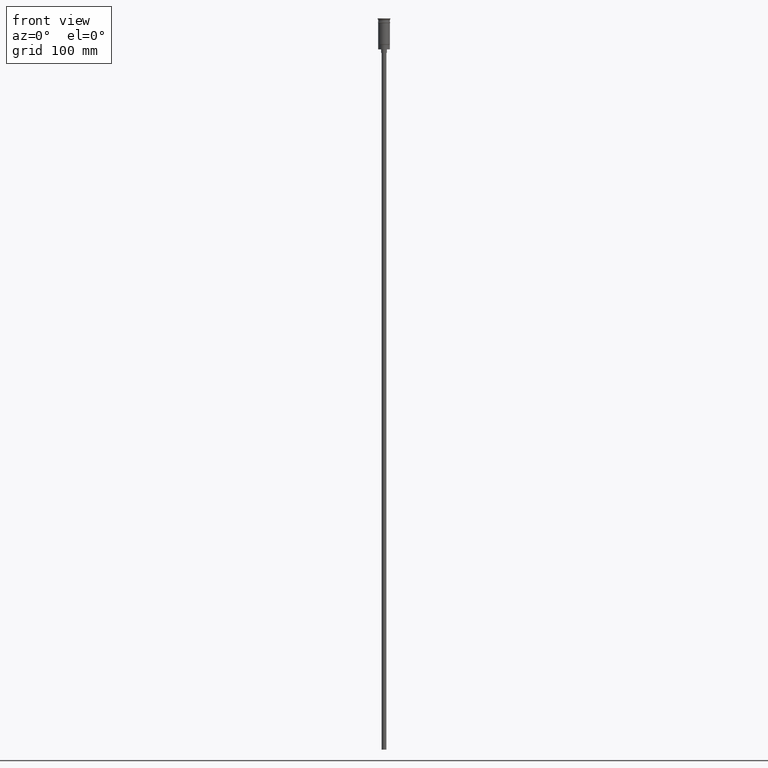
[diagram: clean part render]
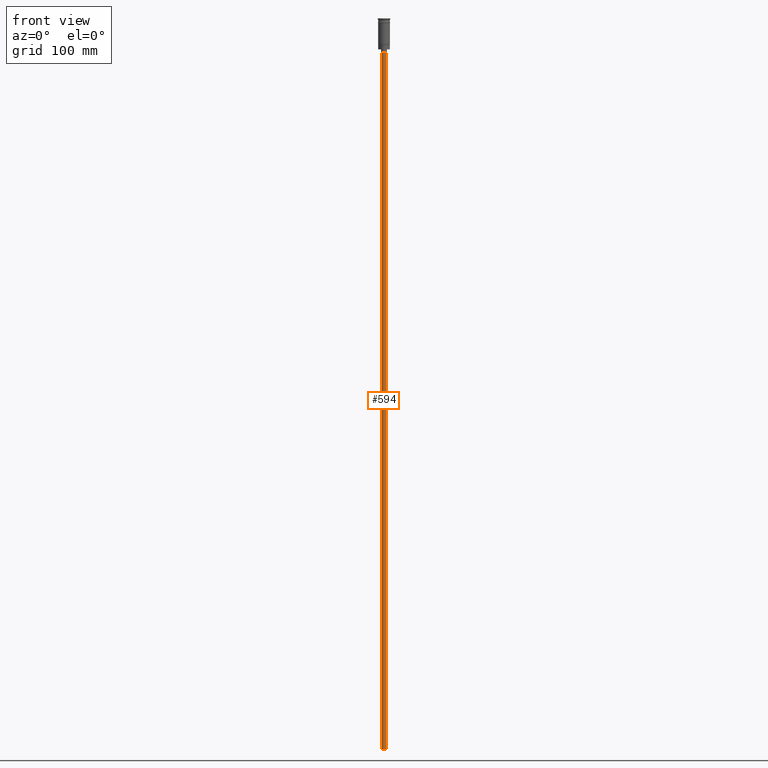
[diagram: same view with one face highlighted and labeled with its STEP entity id]
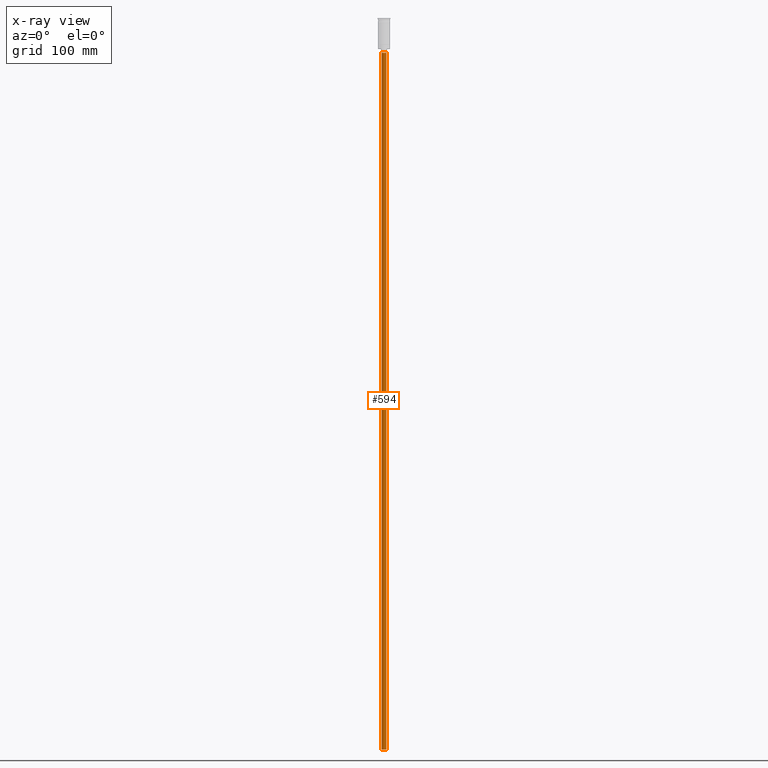
[diagram: x-ray of the same camera — body ghosted, the highlighted face saturated]
A machine part, front view. The second image highlights one B-rep face of the part: STEP entity #594.
The next image is the same camera in x-ray: the body ghosted, the highlighted face saturated — about 0% of this face is hidden behind the body in this view.
In plain terms, the highlighted cylindrical surface (edge-blend (fillet) strip) has radius 2 mm, axis along (-0, -0, 1).
Its self-contained STEP definition (entity closure, byte-faithful):
#24 = CARTESIAN_POINT ( 'NONE',  ( 2.000000000000000000, 0.000000000000000000, -626.5000000000000000 ) ) ;
#40 = CARTESIAN_POINT ( 'NONE',  ( 0.000000000000000000, 0.000000000000000000, -626.5000000000000000 ) ) ;
#81 = FACE_OUTER_BOUND ( 'NONE', #415, .T. ) ;
#136 = CIRCLE ( 'NONE', #1195, 2.000000000000000000 ) ;
#153 = LINE ( 'NONE', #24, #592 ) ;
#157 = VECTOR ( 'NONE', #1250, 1000.000000000000000 ) ;
#229 = ORIENTED_EDGE ( 'NONE', *, *, #1166, .T. ) ;
#239 = CARTESIAN_POINT ( 'NONE',  ( 0.000000000000000000, 0.000000000000000000, -29.50000000000000000 ) ) ;
#280 = CARTESIAN_POINT ( 'NONE',  ( 2.000000000000000000, 0.000000000000000000, -29.50000000000000000 ) ) ;
#391 = LINE ( 'NONE', #760, #157 ) ;
#392 = ORIENTED_EDGE ( 'NONE', *, *, #903, .F. ) ;
#415 = EDGE_LOOP ( 'NONE', ( #392, #583, #1101, #229 ) ) ;
#423 = CARTESIAN_POINT ( 'NONE',  ( -2.000000000000000000, 2.449293598294706414E-16, -29.50000000000000000 ) ) ;
#509 = DIRECTION ( 'NONE',  ( -0.000000000000000000, -0.000000000000000000, 1.000000000000000000 ) ) ;
#522 = DIRECTION ( 'NONE',  ( -0.000000000000000000, -0.000000000000000000, 1.000000000000000000 ) ) ;
#583 = ORIENTED_EDGE ( 'NONE', *, *, #1584, .F. ) ;
#592 = VECTOR ( 'NONE', #509, 1000.000000000000000 ) ;
#594 = ADVANCED_FACE ( 'NONE', ( #81 ), #1035, .T. ) ;
#606 = VERTEX_POINT ( 'NONE', #423 ) ;
#684 = CARTESIAN_POINT ( 'NONE',  ( 0.000000000000000000, 0.000000000000000000, -626.5000000000000000 ) ) ;
#760 = CARTESIAN_POINT ( 'NONE',  ( -2.000000000000000000, 2.449293598294706414E-16, -626.5000000000000000 ) ) ;
#761 = EDGE_CURVE ( 'NONE', #962, #966, #153, .T. ) ;
#766 = CARTESIAN_POINT ( 'NONE',  ( 2.000000000000000000, 0.000000000000000000, -626.5000000000000000 ) ) ;
#828 = DIRECTION ( 'NONE',  ( -1.000000000000000000, 0.000000000000000000, 0.000000000000000000 ) ) ;
#852 = AXIS2_PLACEMENT_3D ( 'NONE', #40, #522, #1024 ) ;
#903 = EDGE_CURVE ( 'NONE', #1306, #606, #391, .T. ) ;
#962 = VERTEX_POINT ( 'NONE', #766 ) ;
#966 = VERTEX_POINT ( 'NONE', #280 ) ;
#1024 = DIRECTION ( 'NONE',  ( 1.000000000000000000, 0.000000000000000000, 0.000000000000000000 ) ) ;
#1035 = CYLINDRICAL_SURFACE ( 'NONE', #852, 2.000000000000000000 ) ;
#1085 = DIRECTION ( 'NONE',  ( -1.000000000000000000, 0.000000000000000000, 0.000000000000000000 ) ) ;
#1101 = ORIENTED_EDGE ( 'NONE', *, *, #761, .T. ) ;
#1162 = CIRCLE ( 'NONE', #1573, 2.000000000000000000 ) ;
#1166 = EDGE_CURVE ( 'NONE', #966, #606, #136, .T. ) ;
#1195 = AXIS2_PLACEMENT_3D ( 'NONE', #239, #1202, #828 ) ;
#1202 = DIRECTION ( 'NONE',  ( 0.000000000000000000, 0.000000000000000000, -1.000000000000000000 ) ) ;
#1250 = DIRECTION ( 'NONE',  ( -0.000000000000000000, -0.000000000000000000, 1.000000000000000000 ) ) ;
#1306 = VERTEX_POINT ( 'NONE', #1496 ) ;
#1336 = DIRECTION ( 'NONE',  ( 0.000000000000000000, 0.000000000000000000, -1.000000000000000000 ) ) ;
#1496 = CARTESIAN_POINT ( 'NONE',  ( -2.000000000000000000, 2.449293598294706414E-16, -626.5000000000000000 ) ) ;
#1573 = AXIS2_PLACEMENT_3D ( 'NONE', #684, #1336, #1085 ) ;
#1584 = EDGE_CURVE ( 'NONE', #962, #1306, #1162, .T. ) ;